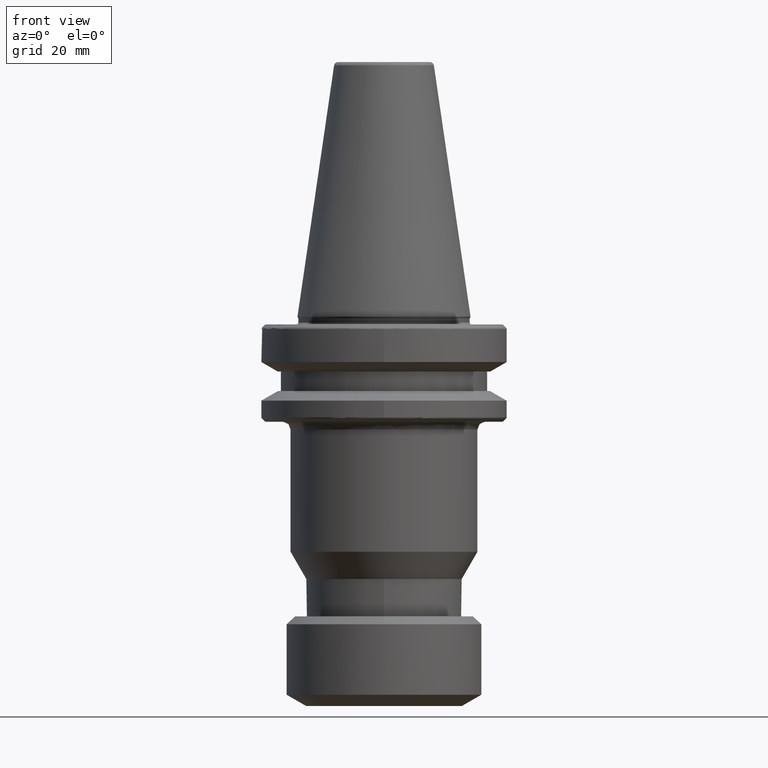
[diagram: clean part render]
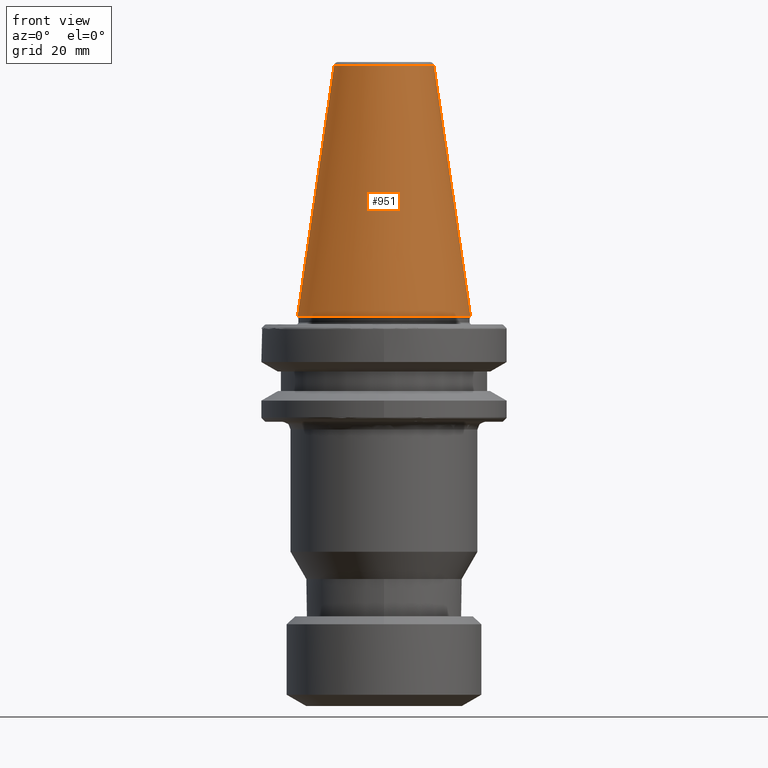
[diagram: same view with one face highlighted and labeled with its STEP entity id]
A machine part, front view. The second image highlights one B-rep face of the part: STEP entity #951.
In plain terms, the highlighted conical surface has half-angle 8.297 deg.
Its self-contained STEP definition (entity closure, byte-faithful):
#8 = CARTESIAN_POINT ( 'NONE',  ( 0.0000000000000000000, 0.0000000000000000000, 0.0000000000000000000 ) ) ;
#18 = DIRECTION ( 'NONE',  ( 0.0000000000000000000, 0.0000000000000000000, 1.000000000000000000 ) ) ;
#26 = CARTESIAN_POINT ( 'NONE',  ( 12.81219950696690200, -3.941739068562204500E-009, 64.54430822700854300 ) ) ;
#27 = CARTESIAN_POINT ( 'NONE',  ( -12.81219950700000300, 0.0000000000000000000, 64.54430822700000200 ) ) ;
#61 = CARTESIAN_POINT ( 'NONE',  ( 12.81219950700000300, 1.569041911628485000E-015, 64.54430822700000200 ) ) ;
#113 = DIRECTION ( 'NONE',  ( 0.1443082272688266400, 1.767266086153973400E-017, -0.9895327864919528600 ) ) ;
#127 = CIRCLE ( 'NONE', #1175, 22.22499999999999800 ) ;
#354 = VECTOR ( 'NONE', #1078, 1000.000000000000000 ) ;
#360 = EDGE_CURVE ( 'NONE', #2944, #1185, #1429, .T. ) ;
#381 = DIRECTION ( 'NONE',  ( -1.000000000000000000, 0.0000000000000000000, 0.0000000000000000000 ) ) ;
#492 = ORIENTED_EDGE ( 'NONE', *, *, #360, .F. ) ;
#532 = LINE ( 'NONE', #27, #354 ) ;
#654 = EDGE_LOOP ( 'NONE', ( #492, #2560, #1155, #3063 ) ) ;
#737 = AXIS2_PLACEMENT_3D ( 'NONE', #3367, #1035, #1030 ) ;
#830 = CONICAL_SURFACE ( 'NONE', #1557, 12.81219950700000300, 0.1448138465489547400 ) ;
#916 = FACE_OUTER_BOUND ( 'NONE', #654, .T. ) ;
#951 = ADVANCED_FACE ( 'NONE', ( #916 ), #830, .T. ) ;
#978 = DIRECTION ( 'NONE',  ( 0.0000000000000000000, 0.0000000000000000000, -1.000000000000000000 ) ) ;
#1030 = DIRECTION ( 'NONE',  ( -1.000000000000000000, 0.0000000000000000000, 2.166339635943424900E-015 ) ) ;
#1035 = DIRECTION ( 'NONE',  ( -0.0000000000000000000, -0.0000000000000000000, 1.000000000000000000 ) ) ;
#1075 = CARTESIAN_POINT ( 'NONE',  ( 0.0000000000000000000, 0.0000000000000000000, 64.54430822700000200 ) ) ;
#1078 = DIRECTION ( 'NONE',  ( -0.1443082272688266400, 0.0000000000000000000, -0.9895327864919528600 ) ) ;
#1155 = ORIENTED_EDGE ( 'NONE', *, *, #2447, .T. ) ;
#1175 = AXIS2_PLACEMENT_3D ( 'NONE', #8, #18, #1198 ) ;
#1185 = VERTEX_POINT ( 'NONE', #2932 ) ;
#1198 = DIRECTION ( 'NONE',  ( 1.000000000000000000, 0.0000000000000000000, 0.0000000000000000000 ) ) ;
#1356 = VECTOR ( 'NONE', #113, 1000.000000000000000 ) ;
#1429 = LINE ( 'NONE', #61, #1356 ) ;
#1476 = CARTESIAN_POINT ( 'NONE',  ( -12.81219950696881500, -1.150453881886354600E-009, 64.54430822699541200 ) ) ;
#1557 = AXIS2_PLACEMENT_3D ( 'NONE', #1075, #978, #381 ) ;
#2123 = EDGE_CURVE ( 'NONE', #3092, #2944, #2680, .T. ) ;
#2422 = VERTEX_POINT ( 'NONE', #3087 ) ;
#2447 = EDGE_CURVE ( 'NONE', #3092, #2422, #532, .T. ) ;
#2560 = ORIENTED_EDGE ( 'NONE', *, *, #2123, .F. ) ;
#2680 = CIRCLE ( 'NONE', #737, 12.81219950700000300 ) ;
#2932 = CARTESIAN_POINT ( 'NONE',  ( 22.22499999999999800, 2.721777511104992100E-015, 0.0000000000000000000 ) ) ;
#2944 = VERTEX_POINT ( 'NONE', #26 ) ;
#2950 = EDGE_CURVE ( 'NONE', #2422, #1185, #127, .T. ) ;
#3063 = ORIENTED_EDGE ( 'NONE', *, *, #2950, .T. ) ;
#3087 = CARTESIAN_POINT ( 'NONE',  ( -22.22499999999999800, 0.0000000000000000000, 0.0000000000000000000 ) ) ;
#3092 = VERTEX_POINT ( 'NONE', #1476 ) ;
#3367 = CARTESIAN_POINT ( 'NONE',  ( 0.0000000000000000000, 0.0000000000000000000, 64.54430822699997300 ) ) ;